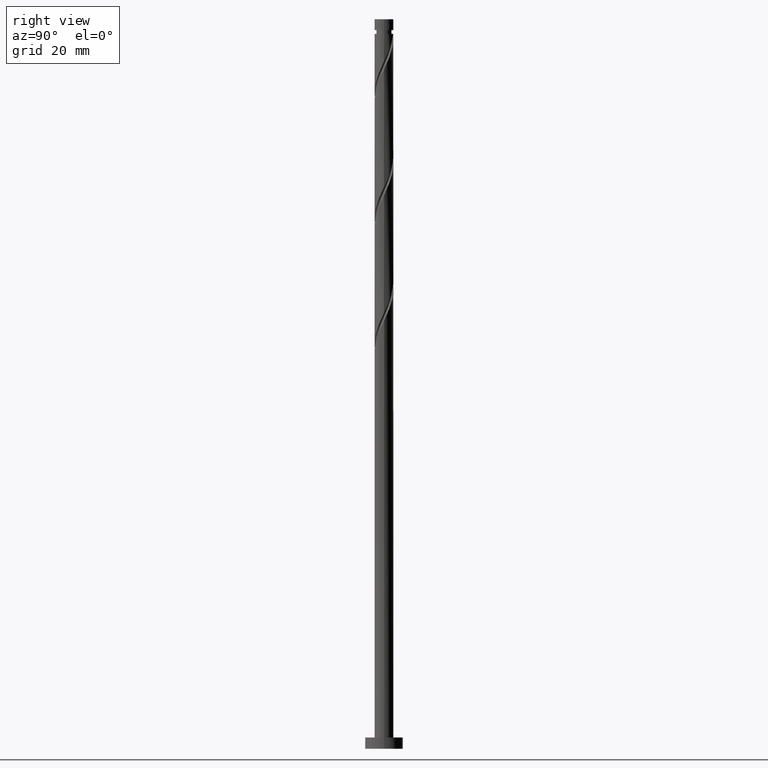
[diagram: clean part render]
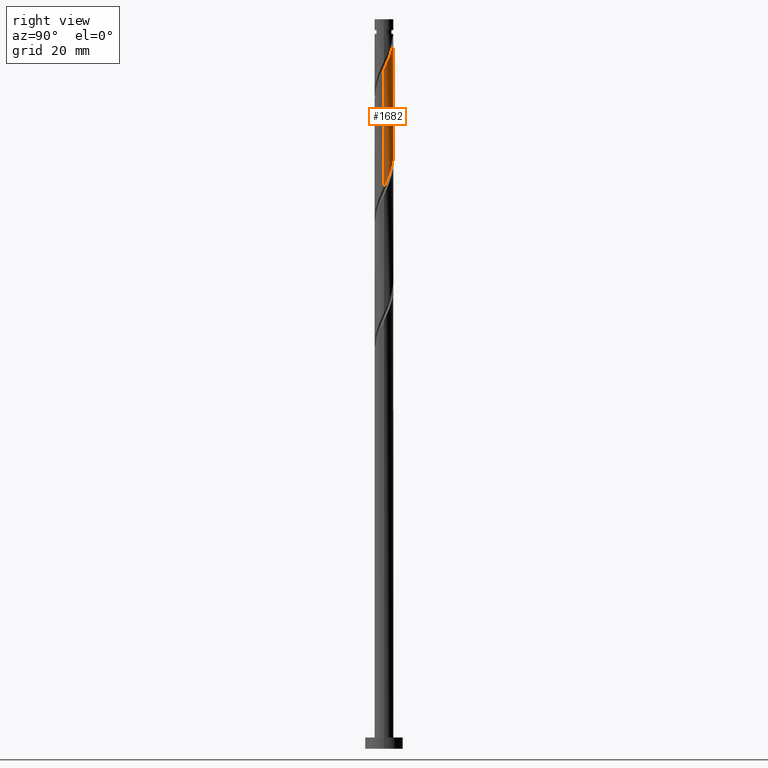
[diagram: same view with one face highlighted and labeled with its STEP entity id]
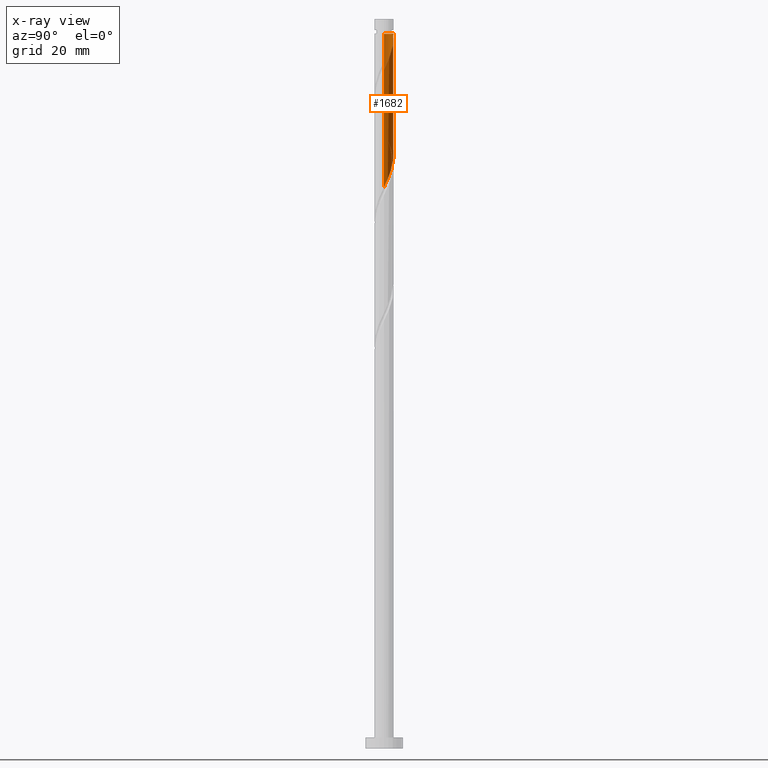
[diagram: x-ray of the same camera — body ghosted, the highlighted face saturated]
A machine part, right view. The second image highlights one B-rep face of the part: STEP entity #1682.
The next image is the same camera in x-ray: the body ghosted, the highlighted face saturated — about 0% of this face is hidden behind the body in this view.
In plain terms, the highlighted cylindrical surface (edge-blend (fillet) strip) has radius 2.5 mm, axis along (-0, -0, -1).
Its self-contained STEP definition (entity closure, byte-faithful):
#31 = DIRECTION ( 'NONE',  ( -0.000000000000000000, -0.000000000000000000, -1.000000000000000000 ) ) ;
#50 = EDGE_CURVE ( 'NONE', #78, #329, #203, .T. ) ;
#78 = VERTEX_POINT ( 'NONE', #619 ) ;
#93 = CARTESIAN_POINT ( 'NONE',  ( 1.655019618953363914, 1.902429351286329950, 184.7339999104863750 ) ) ;
#128 = CARTESIAN_POINT ( 'NONE',  ( -2.500000000000000444, -9.645190966134910391E-16, 165.6586776768075708 ) ) ;
#134 =( BOUNDED_CURVE ( )  B_SPLINE_CURVE ( 2, ( #128, #674, #1208, #1623, #1748, #1352, #535, #1218, #696, #1078, #138, #685, #405, #1383, #1377, #1234, #1626, #397, #285, #1247, #560, #569, #1100, #574, #167, #433, #711 ),
 .UNSPECIFIED., .F., .T. ) 
 B_SPLINE_CURVE_WITH_KNOTS ( ( 3, 2, 2, 2, 2, 2, 2, 2, 2, 2, 2, 2, 2, 3 ),
 ( 0.4295317669814462391, 0.4375000000000000000, 0.4479166666666666852, 0.4583333333333333148, 0.4687500000000000000, 0.4791666666666666852, 0.4895833333333333148, 0.5000000000000000000, 0.5104166666666666297, 0.5208333333333333703, 0.5312500000000000000, 0.5416666666666666297, 0.5520833333333333703, 0.5545317669814457950 ),
 .UNSPECIFIED. ) 
 CURVE ( )  GEOMETRIC_REPRESENTATION_ITEM ( )  RATIONAL_B_SPLINE_CURVE ( ( 0.9062941362546487190, 0.9031415850403529122, 0.9090909090909282675, 0.9013135103398466352, 0.9090909090909282675, 0.9013135103398466352, 0.9090909090909282675, 0.9013135103398466352, 0.9090909090909282675, 0.9013135103398466352, 0.9090909090909282675, 0.9013135103398466352, 0.9090909090909282675, 0.9013135103398466352, 0.9090909090909282675, 0.9013135103398466352, 0.9090909090909282675, 0.9013135103398466352, 0.9090909090909282675, 0.9013135103398466352, 0.9090909090909282675, 0.9013135103398466352, 0.9090909090909282675, 0.9013135103398466352, 0.9090909090909282675, 0.9072628343904223236, 0.9062941362546489410 ) ) 
 REPRESENTATION_ITEM ( '' )  );
#138 = CARTESIAN_POINT ( 'NONE',  ( -0.7941578015096464327, 2.370509098548530424, 159.0395554660419180 ) ) ;
#143 = VERTEX_POINT ( 'NONE', #1145 ) ;
#167 = CARTESIAN_POINT ( 'NONE',  ( 2.495279123588686865, 0.1535646293339463786, 149.3173332438196894 ) ) ;
#178 = ORIENTED_EDGE ( 'NONE', *, *, #899, .T. ) ;
#184 = AXIS2_PLACEMENT_3D ( 'NONE', #1505, #31, #838 ) ;
#203 =( BOUNDED_CURVE ( )  B_SPLINE_CURVE ( 2, ( #324, #1545, #1420, #1278, #895, #1303, #744, #93, #604, #638, #1161, #1686, #333, #738, #612 ),
 .UNSPECIFIED., .F., .T. ) 
 B_SPLINE_CURVE_WITH_KNOTS ( ( 3, 2, 2, 2, 2, 2, 2, 3 ),
 ( 0.6795317669814460171, 0.6875000000000000000, 0.6979166666666667407, 0.7083333333333332593, 0.7187499999999998890, 0.7291666666666666297, 0.7395833333333331483, 0.7499999999999998890 ),
 .UNSPECIFIED. ) 
 CURVE ( )  GEOMETRIC_REPRESENTATION_ITEM ( )  RATIONAL_B_SPLINE_CURVE ( ( 0.9062941362546543811, 0.9031415850403581302, 0.9090909090909338186, 0.9013135103398520753, 0.9090909090909338186, 0.9013135103398520753, 0.9090909090909338186, 0.9013135103398520753, 0.9090909090909338186, 0.9013135103398520753, 0.9090909090909338186, 0.9013135103398520753, 0.9090909090909338186, 0.9013135103398520753, 0.9090909090909338186 ) ) 
 REPRESENTATION_ITEM ( '' )  );
#226 = ORIENTED_EDGE ( 'NONE', *, *, #732, .T. ) ;
#285 = CARTESIAN_POINT ( 'NONE',  ( 1.655842198490353967, 1.873015379995218055, 153.4839999104862898 ) ) ;
#324 = CARTESIAN_POINT ( 'NONE',  ( 2.500000000000003109, -2.093529822106789721E-16, 180.1982110330540934 ) ) ;
#329 = VERTEX_POINT ( 'NONE', #855 ) ;
#333 = CARTESIAN_POINT ( 'NONE',  ( 0.1535646293339501534, 2.495279123588690418, 188.2062221327085751 ) ) ;
#397 = CARTESIAN_POINT ( 'NONE',  ( 1.409255045694378650, 2.091011141037077081, 154.1784443549307753 ) ) ;
#405 = CARTESIAN_POINT ( 'NONE',  ( -0.1535646293339474611, 2.495279123588687753, 157.6506665771530038 ) ) ;
#433 = CARTESIAN_POINT ( 'NONE',  ( 2.499999999999999556, 0.07685487914419782129, 149.1551746981690769 ) ) ;
#535 = CARTESIAN_POINT ( 'NONE',  ( -1.873015379995218943, 1.655842198490353301, 161.8173332438196610 ) ) ;
#560 = CARTESIAN_POINT ( 'NONE',  ( 2.084192795893799577, 1.380630431920282675, 152.0951110215974325 ) ) ;
#569 = CARTESIAN_POINT ( 'NONE',  ( 2.265956240501271868, 1.106241244887205433, 151.4006665771530038 ) ) ;
#574 = CARTESIAN_POINT ( 'NONE',  ( 2.475061956595791646, 0.4820743581320850457, 150.0117776882641749 ) ) ;
#576 = CARTESIAN_POINT ( 'NONE',  ( -2.499999999999988454, 0.000000000000000000, 189.5951110215974609 ) ) ;
#584 = FACE_OUTER_BOUND ( 'NONE', #1117, .T. ) ;
#591 = ORIENTED_EDGE ( 'NONE', *, *, #843, .F. ) ;
#604 = CARTESIAN_POINT ( 'NONE',  ( 1.380630431920286005, 2.084192795893801797, 185.4284443549307184 ) ) ;
#612 = CARTESIAN_POINT ( 'NONE',  ( -0.4974937185533108153, 2.450000000000002842, 189.5951110215974325 ) ) ;
#619 = CARTESIAN_POINT ( 'NONE',  ( 2.500000000000003109, -2.093529822106789721E-16, 180.1982110330540934 ) ) ;
#638 = CARTESIAN_POINT ( 'NONE',  ( 1.106241244887210096, 2.265956240501273200, 186.1228887993752608 ) ) ;
#674 = CARTESIAN_POINT ( 'NONE',  ( -2.500000000000000888, 0.2512594538148033574, 165.1252513076182140 ) ) ;
#685 = CARTESIAN_POINT ( 'NONE',  ( -0.4820743581320866555, 2.475061956595791646, 158.3451110215974325 ) ) ;
#696 = CARTESIAN_POINT ( 'NONE',  ( -1.380630431920283341, 2.084192795893799133, 160.4284443549308037 ) ) ;
#711 = CARTESIAN_POINT ( 'NONE',  ( 2.500000000000000444, 2.938418643171334413E-15, 148.9920110101409136 ) ) ;
#717 = LINE ( 'NONE', #1114, #1122 ) ;
#728 = CYLINDRICAL_SURFACE ( 'NONE', #815, 2.500000000000000000 ) ;
#732 = EDGE_CURVE ( 'NONE', #78, #1390, #1230, .T. ) ;
#738 = CARTESIAN_POINT ( 'NONE',  ( -0.1749450994641851276, 2.515496290581588301, 188.9006665771530322 ) ) ;
#744 = CARTESIAN_POINT ( 'NONE',  ( 1.873015379995222940, 1.655842198490353523, 184.0395554660419180 ) ) ;
#815 = AXIS2_PLACEMENT_3D ( 'NONE', #1394, #1512, #1125 ) ;
#838 = DIRECTION ( 'NONE',  ( -1.000000000000000000, 0.000000000000000000, 0.000000000000000000 ) ) ;
#843 = EDGE_CURVE ( 'NONE', #143, #1390, #134, .T. ) ;
#855 = CARTESIAN_POINT ( 'NONE',  ( -0.4974937185533108153, 2.450000000000002842, 189.5951110215974325 ) ) ;
#888 = EDGE_CURVE ( 'NONE', #1597, #143, #717, .T. ) ;
#895 = CARTESIAN_POINT ( 'NONE',  ( 2.237757425227750119, 1.114648691668403968, 182.6506665771530038 ) ) ;
#899 = EDGE_CURVE ( 'NONE', #1597, #329, #1095, .T. ) ;
#971 = DIRECTION ( 'NONE',  ( -0.000000000000000000, -0.000000000000000000, -1.000000000000000000 ) ) ;
#1023 = ORIENTED_EDGE ( 'NONE', *, *, #50, .F. ) ;
#1078 = CARTESIAN_POINT ( 'NONE',  ( -1.106241244887206987, 2.265956240501270980, 159.7339999104863466 ) ) ;
#1095 = CIRCLE ( 'NONE', #184, 2.499999999999988454 ) ;
#1100 = CARTESIAN_POINT ( 'NONE',  ( 2.370509098548531313, 0.7941578015096449894, 150.7062221327086036 ) ) ;
#1114 = CARTESIAN_POINT ( 'NONE',  ( -2.500000000000000000, 0.000000000000000000, 193.4900000000000091 ) ) ;
#1117 = EDGE_LOOP ( 'NONE', ( #1023, #226, #591, #1569, #178 ) ) ;
#1122 = VECTOR ( 'NONE', #971, 1000.000000000000000 ) ;
#1125 = DIRECTION ( 'NONE',  ( -1.000000000000000000, 0.000000000000000000, 0.000000000000000000 ) ) ;
#1145 = CARTESIAN_POINT ( 'NONE',  ( -2.500000000000000444, -9.645190966134910391E-16, 165.6586776768075424 ) ) ;
#1161 = CARTESIAN_POINT ( 'NONE',  ( 0.7941578015096493193, 2.370509098548532645, 186.8173332438196894 ) ) ;
#1208 = CARTESIAN_POINT ( 'NONE',  ( -2.449999999999999734, 0.4974937185533113149, 164.5951110215974893 ) ) ;
#1218 = CARTESIAN_POINT ( 'NONE',  ( -1.655019618953360139, 1.902429351286329506, 161.1228887993752608 ) ) ;
#1230 = LINE ( 'NONE', #1362, #1676 ) ;
#1234 = CARTESIAN_POINT ( 'NONE',  ( 0.8200423376424332833, 2.384503709418414275, 155.5673332438196326 ) ) ;
#1247 = CARTESIAN_POINT ( 'NONE',  ( 1.902429351286330172, 1.655019618953359251, 152.7895554660418895 ) ) ;
#1278 = CARTESIAN_POINT ( 'NONE',  ( 2.384503709418420048, 0.8200423376424310629, 181.9562221327085751 ) ) ;
#1303 = CARTESIAN_POINT ( 'NONE',  ( 2.091011141037082410, 1.409255045694377317, 183.3451110215974893 ) ) ;
#1340 = DIRECTION ( 'NONE',  ( -0.000000000000000000, -0.000000000000000000, -1.000000000000000000 ) ) ;
#1352 = CARTESIAN_POINT ( 'NONE',  ( -2.091011141037077969, 1.409255045694377539, 162.5117776882641181 ) ) ;
#1362 = CARTESIAN_POINT ( 'NONE',  ( 2.500000000000000000, 3.061616997868383141E-16, 193.4900000000000091 ) ) ;
#1374 = CARTESIAN_POINT ( 'NONE',  ( 2.500000000000000444, 2.938418643171334019E-15, 148.9920110101409136 ) ) ;
#1377 = CARTESIAN_POINT ( 'NONE',  ( 0.4974937185533118145, 2.449999999999999734, 156.2617776882641465 ) ) ;
#1383 = CARTESIAN_POINT ( 'NONE',  ( 0.1749450994641913448, 2.515496290581585193, 156.9562221327086036 ) ) ;
#1390 = VERTEX_POINT ( 'NONE', #1374 ) ;
#1394 = CARTESIAN_POINT ( 'NONE',  ( 0.000000000000000000, 0.000000000000000000, 193.4900000000000091 ) ) ;
#1420 = CARTESIAN_POINT ( 'NONE',  ( 2.450000000000002842, 0.4974937185533110373, 181.2617776882641181 ) ) ;
#1505 = CARTESIAN_POINT ( 'NONE',  ( 0.000000000000000000, 0.000000000000000000, 189.5951110215974609 ) ) ;
#1512 = DIRECTION ( 'NONE',  ( -0.000000000000000000, -0.000000000000000000, -1.000000000000000000 ) ) ;
#1545 = CARTESIAN_POINT ( 'NONE',  ( 2.500000000000005329, 0.2512594538147955303, 180.7316374022433365 ) ) ;
#1569 = ORIENTED_EDGE ( 'NONE', *, *, #888, .F. ) ;
#1597 = VERTEX_POINT ( 'NONE', #576 ) ;
#1623 = CARTESIAN_POINT ( 'NONE',  ( -2.384503709418415163, 0.8200423376424315069, 163.9006665771530606 ) ) ;
#1626 = CARTESIAN_POINT ( 'NONE',  ( 1.114648691668405522, 2.237757425227745234, 154.8728887993752608 ) ) ;
#1676 = VECTOR ( 'NONE', #1340, 1000.000000000000000 ) ;
#1682 = ADVANCED_FACE ( 'NONE', ( #584 ), #728, .T. ) ;
#1686 = CARTESIAN_POINT ( 'NONE',  ( 0.4820743581320889870, 2.475061956595793866, 187.5117776882641181 ) ) ;
#1748 = CARTESIAN_POINT ( 'NONE',  ( -2.237757425227747010, 1.114648691668404634, 163.2062221327085751 ) ) ;